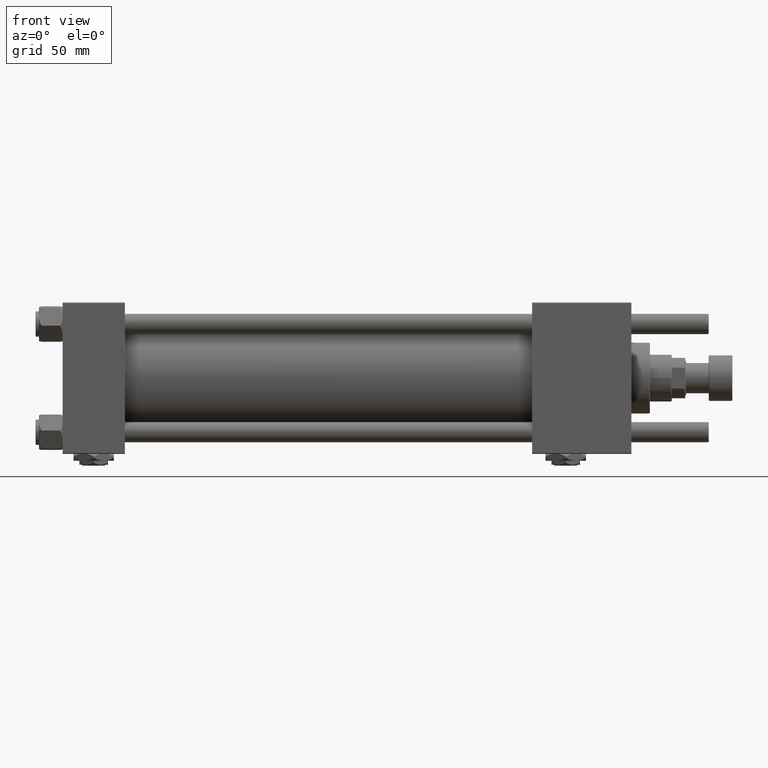
[diagram: clean part render]
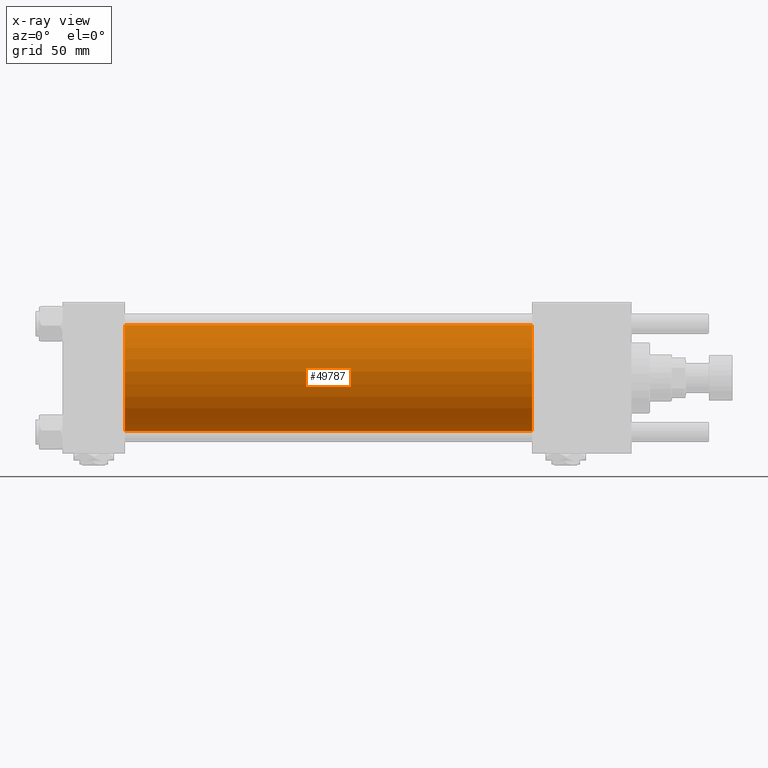
[diagram: x-ray — body ghosted, one internal face saturated and labeled with its STEP entity id]
A machine part, front view, then the same camera in x-ray: the body is ghosted and one INTERNAL B-rep face — a face not visible from any outside direction — is saturated and labeled: STEP entity #49787.
In plain terms, the highlighted cylindrical surface (partial cylindrical patch) has radius 31.5 mm, axis along (-1, -0, -0).
Its self-contained STEP definition (entity closure, byte-faithful):
#1182 = VERTEX_POINT ( 'NONE', #11901 ) ;
#2729 = CARTESIAN_POINT ( 'NONE',  ( 37.00000000000000000, 1.255552203348951850E-15, -31.50000000000000000 ) ) ;
#5539 = DIRECTION ( 'NONE',  ( 0.000000000000000000, 0.000000000000000000, -1.000000000000000000 ) ) ;
#6152 = DIRECTION ( 'NONE',  ( 1.000000000000000000, 0.000000000000000000, 0.000000000000000000 ) ) ;
#7272 = EDGE_CURVE ( 'NONE', #17543, #53454, #25612, .T. ) ;
#10419 = VERTEX_POINT ( 'NONE', #13400 ) ;
#11120 = ORIENTED_EDGE ( 'NONE', *, *, #7272, .T. ) ;
#11901 = CARTESIAN_POINT ( 'NONE',  ( 37.00000000000000000, -2.602085213965210642E-15, 31.50000000000000000 ) ) ;
#12398 = ORIENTED_EDGE ( 'NONE', *, *, #19233, .F. ) ;
#12587 = CARTESIAN_POINT ( 'NONE',  ( 37.00000000000000000, -2.602085213965210642E-15, 0.000000000000000000 ) ) ;
#13211 = EDGE_CURVE ( 'NONE', #10419, #17543, #49973, .T. ) ;
#13400 = CARTESIAN_POINT ( 'NONE',  ( 278.9999999999999432, -2.602085213965210642E-15, 31.50000000000000000 ) ) ;
#15502 = AXIS2_PLACEMENT_3D ( 'NONE', #50799, #6152, #5539 ) ;
#15960 = CARTESIAN_POINT ( 'NONE',  ( 278.9999999999999432, 1.255552203348951850E-15, -31.50000000000000000 ) ) ;
#17543 = VERTEX_POINT ( 'NONE', #15960 ) ;
#19233 = EDGE_CURVE ( 'NONE', #1182, #53454, #33939, .T. ) ;
#21507 = ORIENTED_EDGE ( 'NONE', *, *, #13211, .T. ) ;
#21628 = FACE_OUTER_BOUND ( 'NONE', #22371, .T. ) ;
#22371 = EDGE_LOOP ( 'NONE', ( #21507, #11120, #12398, #53035 ) ) ;
#25612 = LINE ( 'NONE', #26194, #26061 ) ;
#26061 = VECTOR ( 'NONE', #57710, 1000.000000000000000 ) ;
#26194 = CARTESIAN_POINT ( 'NONE',  ( 278.9999999999999432, 1.255552203348951850E-15, -31.50000000000000000 ) ) ;
#27299 = DIRECTION ( 'NONE',  ( 0.000000000000000000, 0.000000000000000000, 1.000000000000000000 ) ) ;
#31212 = DIRECTION ( 'NONE',  ( -1.000000000000000000, -0.000000000000000000, -0.000000000000000000 ) ) ;
#31741 = DIRECTION ( 'NONE',  ( 1.000000000000000000, 0.000000000000000000, 0.000000000000000000 ) ) ;
#33939 = CIRCLE ( 'NONE', #41564, 31.50000000000000000 ) ;
#35716 = CARTESIAN_POINT ( 'NONE',  ( 278.9999999999999432, -2.602085213965210642E-15, 0.000000000000000000 ) ) ;
#40387 = EDGE_CURVE ( 'NONE', #10419, #1182, #47819, .T. ) ;
#40723 = DIRECTION ( 'NONE',  ( 0.000000000000000000, 0.000000000000000000, -1.000000000000000000 ) ) ;
#41564 = AXIS2_PLACEMENT_3D ( 'NONE', #12587, #31741, #40723 ) ;
#45289 = CYLINDRICAL_SURFACE ( 'NONE', #49540, 31.50000000000000000 ) ;
#46726 = VECTOR ( 'NONE', #52635, 1000.000000000000000 ) ;
#47819 = LINE ( 'NONE', #48119, #46726 ) ;
#48119 = CARTESIAN_POINT ( 'NONE',  ( 278.9999999999999432, -2.602085213965210642E-15, 31.50000000000000000 ) ) ;
#49540 = AXIS2_PLACEMENT_3D ( 'NONE', #35716, #31212, #27299 ) ;
#49787 = ADVANCED_FACE ( 'NONE', ( #21628 ), #45289, .F. ) ;
#49973 = CIRCLE ( 'NONE', #15502, 31.50000000000000000 ) ;
#50799 = CARTESIAN_POINT ( 'NONE',  ( 278.9999999999999432, -2.602085213965210642E-15, 0.000000000000000000 ) ) ;
#52635 = DIRECTION ( 'NONE',  ( -1.000000000000000000, -0.000000000000000000, -0.000000000000000000 ) ) ;
#53035 = ORIENTED_EDGE ( 'NONE', *, *, #40387, .F. ) ;
#53454 = VERTEX_POINT ( 'NONE', #2729 ) ;
#57710 = DIRECTION ( 'NONE',  ( -1.000000000000000000, -0.000000000000000000, -0.000000000000000000 ) ) ;